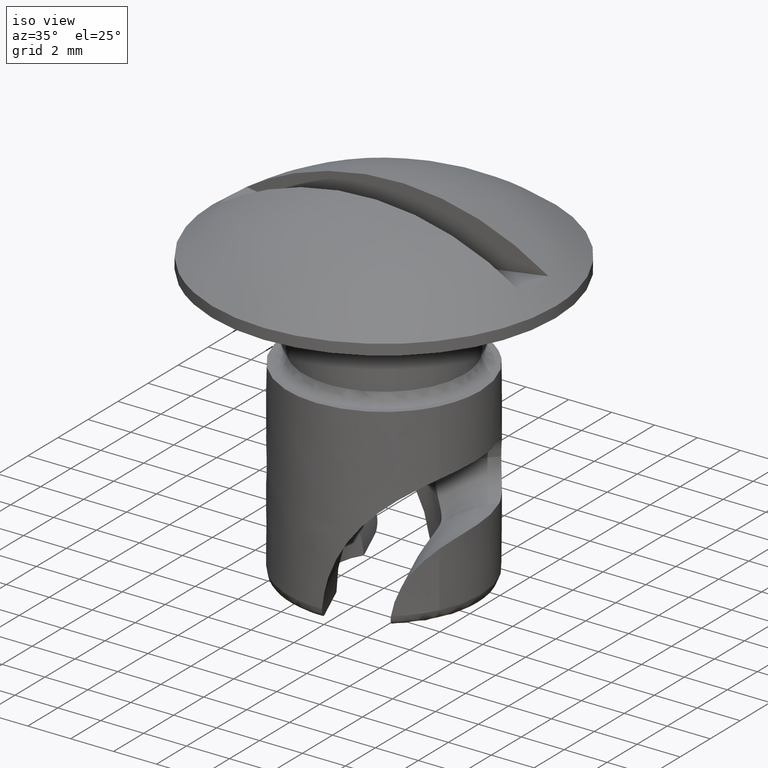
[diagram: clean part render]
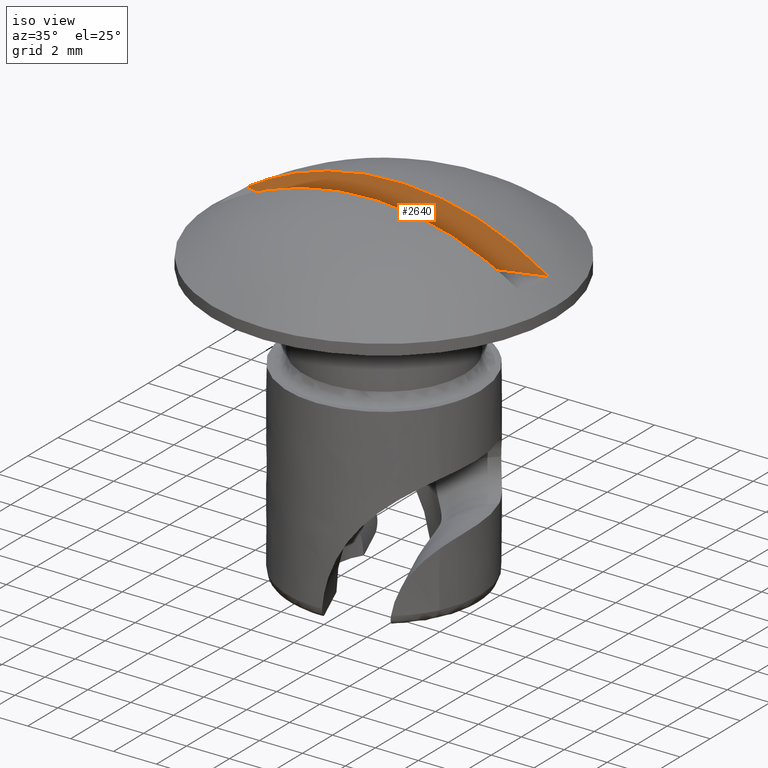
[diagram: same view with one face highlighted and labeled with its STEP entity id]
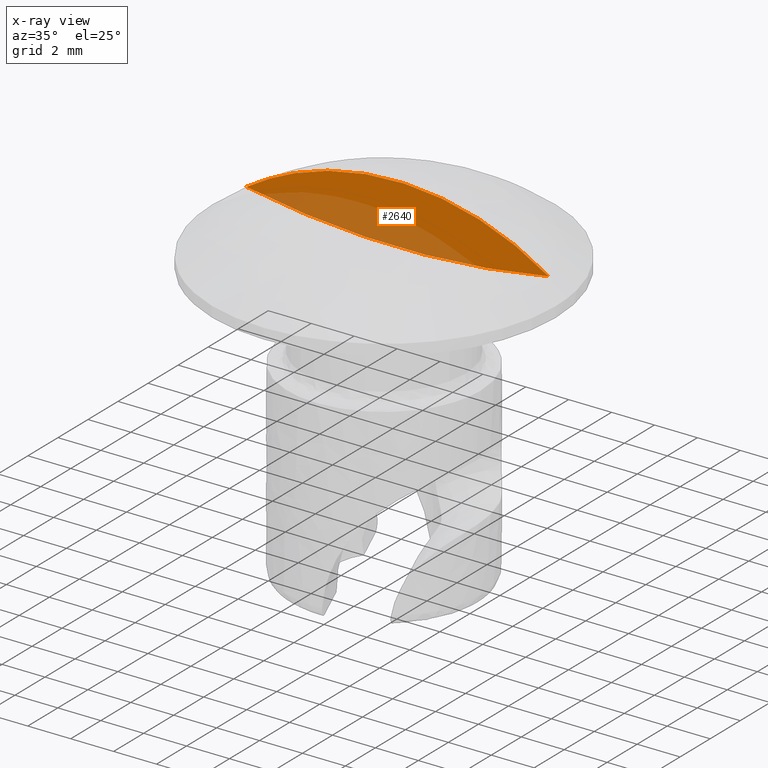
[diagram: x-ray of the same camera — body ghosted, the highlighted face saturated]
A machine part, iso view. The second image highlights one B-rep face of the part: STEP entity #2640.
The next image is the same camera in x-ray: the body ghosted, the highlighted face saturated — about 35% of this face is hidden behind the body in this view.
In plain terms, the highlighted face is a freeform B-spline surface patch.
Its self-contained STEP definition (entity closure, byte-faithful):
#2599=CARTESIAN_POINT('',(-7.743397189661149,0.899994000000000,3.406677781481524));
#2600=CARTESIAN_POINT('',(7.743397693207776,0.899994000000000,3.406677781481524));
#2601=CARTESIAN_POINT('',(-7.743397189661149,0.899994000000000,0.361718531565954));
#2602=CARTESIAN_POINT('',(7.743397693207777,0.899994000000000,0.361718531565954));
#2603=B_SPLINE_SURFACE_WITH_KNOTS('',1,1,((#2599,#2601),(#2600,#2602)),.UNSPECIFIED.,.F.,.F.,.U.,(2,2),(2,2),(0.0,15.486794882868930),(0.0,3.044959249915570),.UNSPECIFIED.);
#2604=CARTESIAN_POINT('',(7.040092143945790,0.899993999999985,1.157837467485190));
#2605=VERTEX_POINT('',#2604);
#2606=CARTESIAN_POINT('',(-7.040092143945790,0.899993999999985,1.157837467485190));
#2607=VERTEX_POINT('',#2606);
#2608=CARTESIAN_POINT('',(7.040092143945790,0.899993999999985,1.157837467485190));
#2609=CARTESIAN_POINT('',(6.634815942637080,0.899993999999988,1.424844610646688));
#2610=CARTESIAN_POINT('',(5.827469941368298,0.899993999999983,1.893143221371514));
#2611=CARTESIAN_POINT('',(4.689653934405718,0.899993999999997,2.396380209155836));
#2612=CARTESIAN_POINT('',(3.383799849148461,0.899993999999988,2.840290336334662));
#2613=CARTESIAN_POINT('',(1.844650657970343,0.899993999999996,3.181999126757700));
#2614=CARTESIAN_POINT('',(-0.000201757093516,0.899993999999983,3.312338938396131));
#2615=CARTESIAN_POINT('',(-1.591548572930469,0.899994000000002,3.196235133240083));
#2616=CARTESIAN_POINT('',(-2.947795469908517,0.899993999999993,2.943371701483604));
#2617=CARTESIAN_POINT('',(-3.938534309445363,0.899993999999992,2.661042878985255));
#2618=CARTESIAN_POINT('',(-4.958267652257252,0.899993999999994,2.283045712039161));
#2619=CARTESIAN_POINT('',(-5.946602779889756,0.899993999999982,1.826966933662780));
#2620=CARTESIAN_POINT('',(-6.683447533473753,0.899993999999987,1.392798555805932));
#2621=CARTESIAN_POINT('',(-7.040092143945790,0.899993999999985,1.157837467485190));
#2622=B_SPLINE_CURVE_WITH_KNOTS('',3,(#2608,#2609,#2610,#2611,#2612,#2613,#2614,#2615,#2616,#2617,#2618,#2619,#2620,#2621),.UNSPECIFIED.,.F.,.U.,(4,1,1,1,1,1,1,1,1,1,1,4),(3.012252E-009,1.455978435409598,2.795477439478399,3.727305296967936,5.590960402373581,7.512846456562359,9.260021087902448,10.366566636005709,11.647829709786951,12.346700270526100,13.627963656340521,14.909221117967880),.UNSPECIFIED.);
#2623=EDGE_CURVE('',#2605,#2607,#2622,.T.);
#2624=ORIENTED_EDGE('',*,*,#2623,.T.);
#2625=CARTESIAN_POINT('',(-7.040092143945793,0.899993999999960,1.157837467485191));
#2626=CARTESIAN_POINT('',(-9.540979E-015,0.899993999999960,-0.169426248216635));
#2627=CARTESIAN_POINT('',(7.040092143945790,0.899993999999985,1.157837467485190));
#2635=(BOUNDED_CURVE()B_SPLINE_CURVE(2,(#2625,#2626,#2627),.UNSPECIFIED.,.F.,.U.)CURVE()GEOMETRIC_REPRESENTATION_ITEM()QUASI_UNIFORM_CURVE()RATIONAL_B_SPLINE_CURVE((1.0,0.982688487697758,1.0))REPRESENTATION_ITEM(''));
#2636=EDGE_CURVE('',#2607,#2605,#2635,.T.);
#2637=ORIENTED_EDGE('',*,*,#2636,.T.);
#2638=EDGE_LOOP('',(#2624,#2637));
#2639=FACE_OUTER_BOUND('',#2638,.T.);
#2640=ADVANCED_FACE('',(#2639),#2603,.F.);